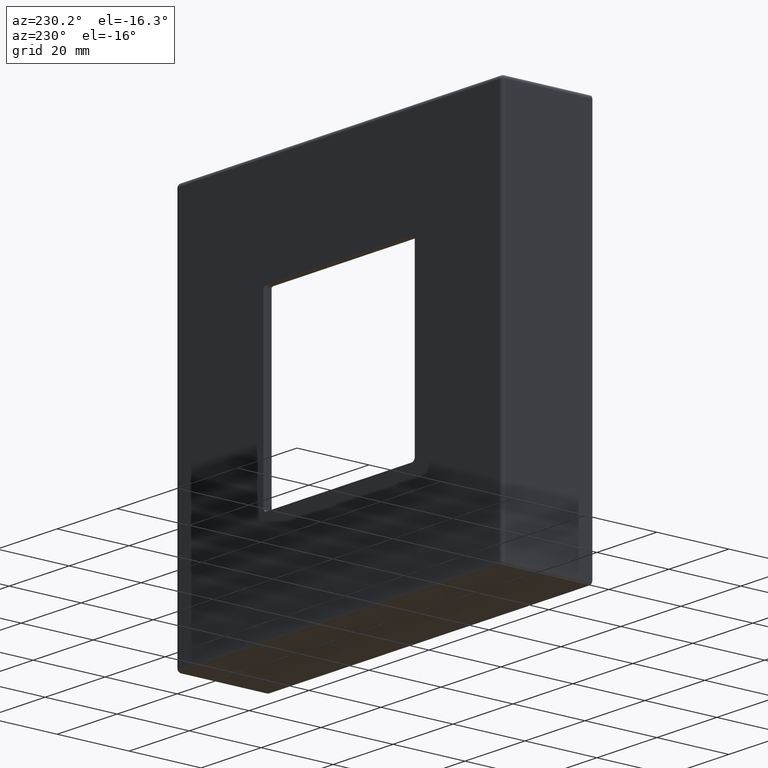
[diagram: clean part render]
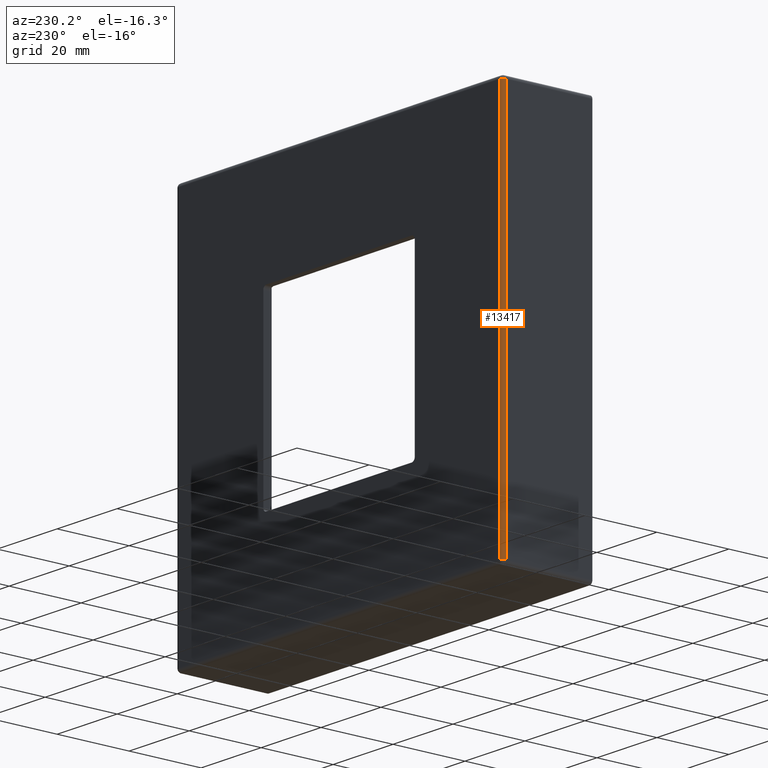
[diagram: same view with one face highlighted and labeled with its STEP entity id]
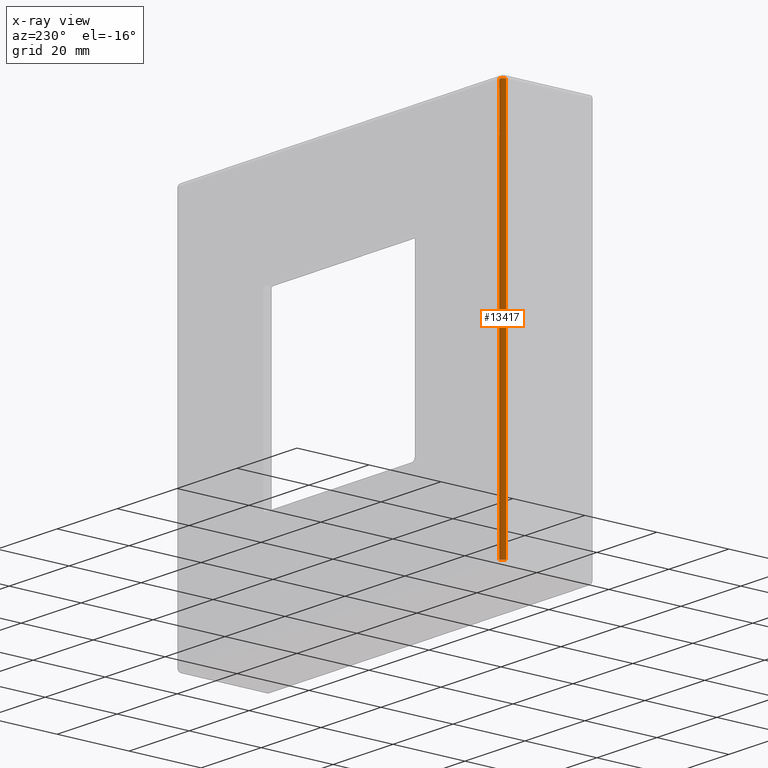
[diagram: x-ray of the same camera — body ghosted, the highlighted face saturated]
A machine part, auxiliary view. The second image highlights one B-rep face of the part: STEP entity #13417.
The next image is the same camera in x-ray: the body ghosted, the highlighted face saturated — about 0% of this face is hidden behind the body in this view.
In plain terms, the highlighted cylindrical surface (edge-blend (fillet) strip) has radius 1 mm, axis along (-0, 0, -1).
Its self-contained STEP definition (entity closure, byte-faithful):
#93 = CIRCLE ( 'NONE', #10722, 1.000000000000000888 ) ;
#99 = DIRECTION ( 'NONE',  ( -1.273191542001326810E-16, -0.000000000000000000, -1.000000000000000000 ) ) ;
#924 = FACE_OUTER_BOUND ( 'NONE', #2881, .T. ) ;
#1007 = ORIENTED_EDGE ( 'NONE', *, *, #7580, .F. ) ;
#1260 = DIRECTION ( 'NONE',  ( 0.000000000000000000, -0.000000000000000000, 1.000000000000000000 ) ) ;
#1294 = VECTOR ( 'NONE', #6322, 1000.000000000000000 ) ;
#2881 = EDGE_LOOP ( 'NONE', ( #14647, #1007, #10553, #6905 ) ) ;
#3262 = AXIS2_PLACEMENT_3D ( 'NONE', #9673, #9614, #13812 ) ;
#4028 = DIRECTION ( 'NONE',  ( 1.000000000000000000, 0.000000000000000000, 0.000000000000000000 ) ) ;
#4193 = CIRCLE ( 'NONE', #13993, 1.000000000000000888 ) ;
#6322 = DIRECTION ( 'NONE',  ( 1.273191542001326810E-16, -0.000000000000000000, 1.000000000000000000 ) ) ;
#6634 = CYLINDRICAL_SURFACE ( 'NONE', #3262, 1.000000000000000888 ) ;
#6905 = ORIENTED_EDGE ( 'NONE', *, *, #17438, .F. ) ;
#7417 = VERTEX_POINT ( 'NONE', #15565 ) ;
#7580 = EDGE_CURVE ( 'NONE', #12240, #10551, #13933, .T. ) ;
#7590 = DIRECTION ( 'NONE',  ( -1.000000000000000000, 0.000000000000000000, 0.000000000000000000 ) ) ;
#8033 = CARTESIAN_POINT ( 'NONE',  ( -54.50000000000000711, 24.00000000000000000, -53.50000000000000000 ) ) ;
#8091 = CARTESIAN_POINT ( 'NONE',  ( -54.50000000000000711, 24.00000000000000000, -54.50000000000000000 ) ) ;
#8594 = EDGE_CURVE ( 'NONE', #7417, #10551, #4193, .T. ) ;
#8925 = CARTESIAN_POINT ( 'NONE',  ( -53.49999999999999289, 25.00000000000000000, 54.49999999999999289 ) ) ;
#9614 = DIRECTION ( 'NONE',  ( -1.273191542001326810E-16, 0.000000000000000000, -1.000000000000000000 ) ) ;
#9673 = CARTESIAN_POINT ( 'NONE',  ( -53.50000000000000000, 24.00000000000000000, 6.811574749707097817E-15 ) ) ;
#10551 = VERTEX_POINT ( 'NONE', #8033 ) ;
#10553 = ORIENTED_EDGE ( 'NONE', *, *, #12903, .F. ) ;
#10709 = CARTESIAN_POINT ( 'NONE',  ( -53.49999999999999289, 24.00000000000000000, 53.49999999999999289 ) ) ;
#10722 = AXIS2_PLACEMENT_3D ( 'NONE', #10709, #1260, #4028 ) ;
#12240 = VERTEX_POINT ( 'NONE', #12575 ) ;
#12575 = CARTESIAN_POINT ( 'NONE',  ( -54.49999999999999289, 24.00000000000000000, 53.49999999999999289 ) ) ;
#12903 = EDGE_CURVE ( 'NONE', #13208, #12240, #93, .T. ) ;
#12975 = DIRECTION ( 'NONE',  ( -0.000000000000000000, -0.000000000000000000, 1.000000000000000000 ) ) ;
#13208 = VERTEX_POINT ( 'NONE', #14478 ) ;
#13417 = ADVANCED_FACE ( 'NONE', ( #924 ), #6634, .T. ) ;
#13812 = DIRECTION ( 'NONE',  ( -1.000000000000000000, 0.000000000000000000, 1.273191542001332973E-16 ) ) ;
#13933 = LINE ( 'NONE', #8091, #16278 ) ;
#13993 = AXIS2_PLACEMENT_3D ( 'NONE', #15720, #12975, #7590 ) ;
#14478 = CARTESIAN_POINT ( 'NONE',  ( -53.49999999999999289, 25.00000000000000000, 53.49999999999999289 ) ) ;
#14647 = ORIENTED_EDGE ( 'NONE', *, *, #8594, .T. ) ;
#15565 = CARTESIAN_POINT ( 'NONE',  ( -53.50000000000000711, 25.00000000000000000, -53.50000000000000000 ) ) ;
#15720 = CARTESIAN_POINT ( 'NONE',  ( -53.50000000000000711, 24.00000000000000000, -53.50000000000000000 ) ) ;
#16278 = VECTOR ( 'NONE', #99, 1000.000000000000000 ) ;
#16970 = LINE ( 'NONE', #8925, #1294 ) ;
#17438 = EDGE_CURVE ( 'NONE', #7417, #13208, #16970, .T. ) ;